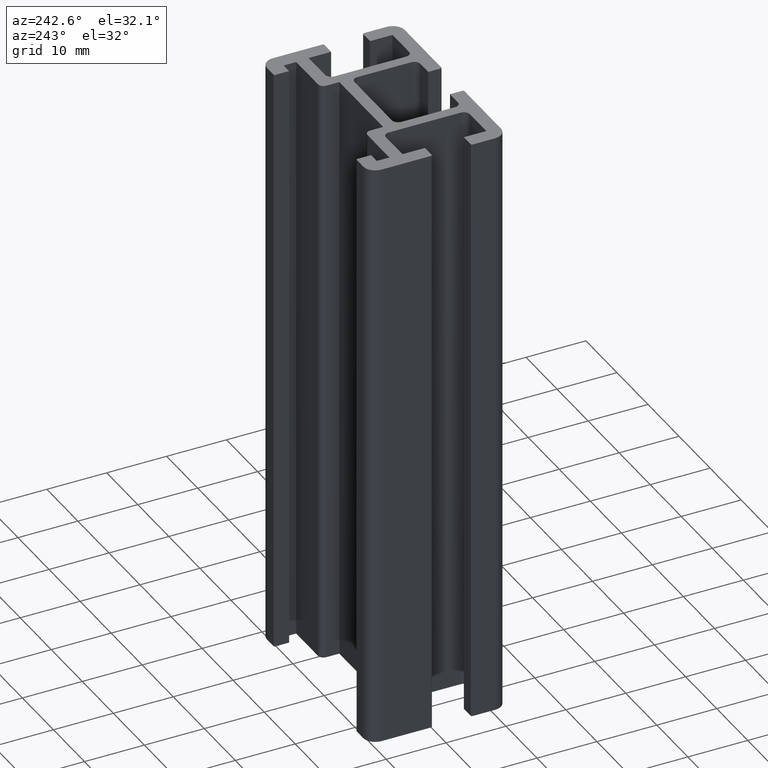
[diagram: clean part render]
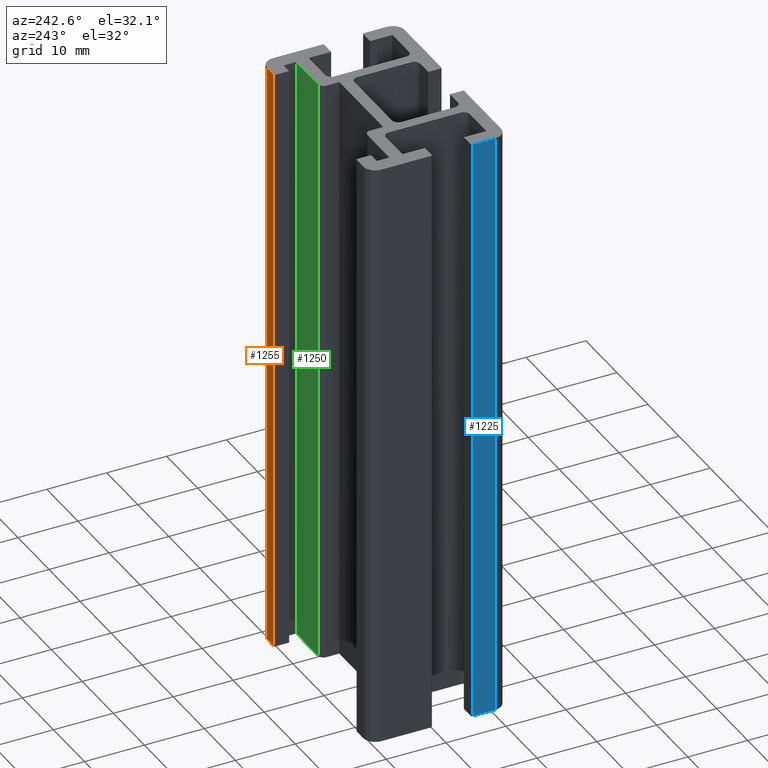
[diagram: same view with three faces highlighted in distinct colors, each labeled with its STEP entity id]
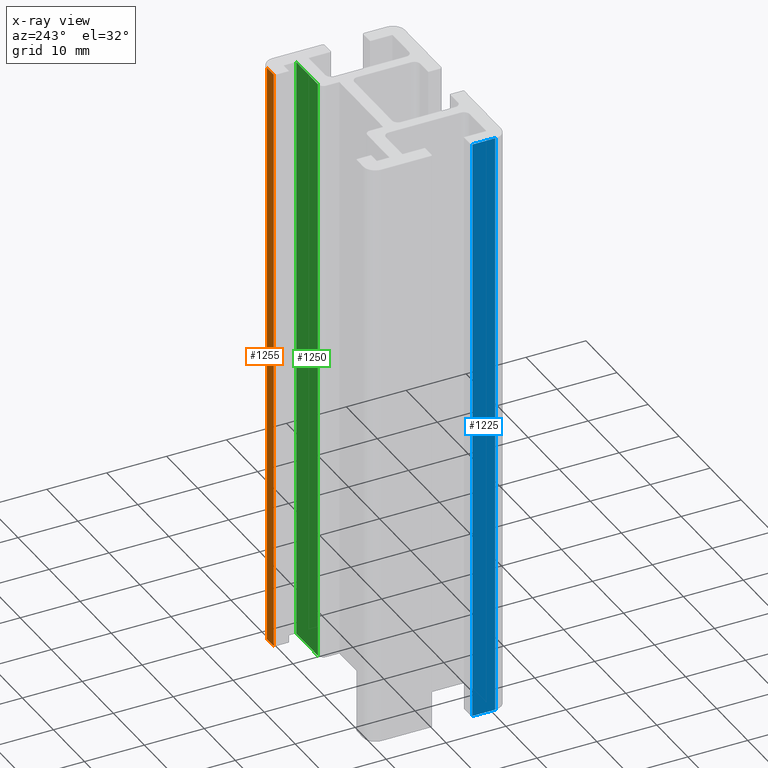
[diagram: x-ray of the same camera — body ghosted, the three highlighted faces saturated]
A machine part, auxiliary view with three faces highlighted in distinct colors.
The next image is the same camera in x-ray (body ghosted, the three faces saturated) — at least one of them is partly hidden behind the body in this view.
Their STEP definitions:

[orange] entity #1255 — the highlighted planar face has unit normal (0, 1, 0).
#40=PLANE('',#1347);
#95=FACE_OUTER_BOUND('',#159,.T.);
#159=EDGE_LOOP('',(#975,#976,#977,#978));
#273=LINE('',#1982,#415);
#274=LINE('',#1985,#416);
#275=LINE('',#1987,#417);
#276=LINE('',#1988,#418);
#415=VECTOR('',#1609,100.);
#416=VECTOR('',#1612,2.10000000000001);
#417=VECTOR('',#1613,2.10000000000001);
#418=VECTOR('',#1614,100.);
#589=VERTEX_POINT('',#1978);
#590=VERTEX_POINT('',#1980);
#591=VERTEX_POINT('',#1984);
#592=VERTEX_POINT('',#1986);
#751=EDGE_CURVE('',#589,#590,#273,.T.);
#752=EDGE_CURVE('',#591,#589,#274,.T.);
#753=EDGE_CURVE('',#592,#590,#275,.T.);
#754=EDGE_CURVE('',#591,#592,#276,.T.);
#975=ORIENTED_EDGE('',*,*,#752,.T.);
#976=ORIENTED_EDGE('',*,*,#751,.T.);
#977=ORIENTED_EDGE('',*,*,#753,.F.);
#978=ORIENTED_EDGE('',*,*,#754,.F.);
#1255=ADVANCED_FACE('',(#95),#40,.T.);
#1347=AXIS2_PLACEMENT_3D('',#1983,#1610,#1611);
#1609=DIRECTION('',(0.,0.,1.));
#1610=DIRECTION('center_axis',(0.,1.,0.));
#1611=DIRECTION('ref_axis',(-1.,0.,0.));
#1612=DIRECTION('',(-1.,0.,0.));
#1613=DIRECTION('',(-1.,0.,0.));
#1614=DIRECTION('',(0.,0.,1.));
#1978=CARTESIAN_POINT('',(13.4,11.5,0.));
#1980=CARTESIAN_POINT('',(13.4,11.5,100.));
#1982=CARTESIAN_POINT('',(13.4,11.5,0.));
#1983=CARTESIAN_POINT('Origin',(15.5,11.5,0.));
#1984=CARTESIAN_POINT('',(15.5,11.5,0.));
#1985=CARTESIAN_POINT('',(15.5,11.5,0.));
#1986=CARTESIAN_POINT('',(15.5,11.5,100.));
#1987=CARTESIAN_POINT('',(15.5,11.5,100.));
#1988=CARTESIAN_POINT('',(15.5,11.5,0.));

[blue] entity #1225 — the highlighted planar face has unit normal (-1, -0, 0).
#19=PLANE('',#1299);
#65=FACE_OUTER_BOUND('',#129,.T.);
#129=EDGE_LOOP('',(#855,#856,#857,#858));
#201=LINE('',#1802,#343);
#202=LINE('',#1805,#344);
#203=LINE('',#1807,#345);
#204=LINE('',#1808,#346);
#343=VECTOR('',#1441,100.);
#344=VECTOR('',#1444,3.79999999999999);
#345=VECTOR('',#1445,3.79999999999999);
#346=VECTOR('',#1446,100.);
#529=VERTEX_POINT('',#1798);
#530=VERTEX_POINT('',#1800);
#531=VERTEX_POINT('',#1804);
#532=VERTEX_POINT('',#1806);
#661=EDGE_CURVE('',#529,#530,#201,.T.);
#662=EDGE_CURVE('',#531,#529,#202,.T.);
#663=EDGE_CURVE('',#532,#530,#203,.T.);
#664=EDGE_CURVE('',#531,#532,#204,.T.);
#855=ORIENTED_EDGE('',*,*,#662,.T.);
#856=ORIENTED_EDGE('',*,*,#661,.T.);
#857=ORIENTED_EDGE('',*,*,#663,.F.);
#858=ORIENTED_EDGE('',*,*,#664,.F.);
#1225=ADVANCED_FACE('',(#65),#19,.T.);
#1299=AXIS2_PLACEMENT_3D('',#1803,#1442,#1443);
#1441=DIRECTION('',(0.,0.,1.));
#1442=DIRECTION('center_axis',(-1.,-4.67462326157962E-15,0.));
#1443=DIRECTION('ref_axis',(4.61852778244065E-15,-1.,0.));
#1444=DIRECTION('',(4.67462326157962E-15,-1.,0.));
#1445=DIRECTION('',(4.67462326157962E-15,-1.,0.));
#1446=DIRECTION('',(0.,0.,1.));
#1798=CARTESIAN_POINT('',(-17.5,-9.49999999999999,0.));
#1800=CARTESIAN_POINT('',(-17.5,-9.49999999999999,100.));
#1802=CARTESIAN_POINT('',(-17.5,-9.49999999999999,0.));
#1803=CARTESIAN_POINT('Origin',(-17.5,-5.7,0.));
#1804=CARTESIAN_POINT('',(-17.5,-5.7,0.));
#1805=CARTESIAN_POINT('',(-17.5,-5.7,0.));
#1806=CARTESIAN_POINT('',(-17.5,-5.7,100.));
#1807=CARTESIAN_POINT('',(-17.5,-5.7,100.));
#1808=CARTESIAN_POINT('',(-17.5,-5.7,0.));

[green] entity #1250 — the highlighted planar face has unit normal (0, 1, 0).
#36=PLANE('',#1340);
#90=FACE_OUTER_BOUND('',#154,.T.);
#154=EDGE_LOOP('',(#955,#956,#957,#958));
#260=LINE('',#1952,#402);
#261=LINE('',#1955,#403);
#262=LINE('',#1957,#404);
#263=LINE('',#1958,#405);
#402=VECTOR('',#1582,100.);
#403=VECTOR('',#1585,6.98533053704571);
#404=VECTOR('',#1586,6.98533053704571);
#405=VECTOR('',#1587,100.);
#579=VERTEX_POINT('',#1948);
#580=VERTEX_POINT('',#1950);
#581=VERTEX_POINT('',#1954);
#582=VERTEX_POINT('',#1956);
#736=EDGE_CURVE('',#579,#580,#260,.T.);
#737=EDGE_CURVE('',#581,#579,#261,.T.);
#738=EDGE_CURVE('',#582,#580,#262,.T.);
#739=EDGE_CURVE('',#581,#582,#263,.T.);
#955=ORIENTED_EDGE('',*,*,#737,.T.);
#956=ORIENTED_EDGE('',*,*,#736,.T.);
#957=ORIENTED_EDGE('',*,*,#738,.F.);
#958=ORIENTED_EDGE('',*,*,#739,.F.);
#1250=ADVANCED_FACE('',(#90),#36,.T.);
#1340=AXIS2_PLACEMENT_3D('',#1953,#1583,#1584);
#1582=DIRECTION('',(0.,0.,1.));
#1583=DIRECTION('center_axis',(0.,1.,0.));
#1584=DIRECTION('ref_axis',(-1.,0.,0.));
#1585=DIRECTION('',(-1.,0.,0.));
#1586=DIRECTION('',(-1.,0.,0.));
#1587=DIRECTION('',(0.,0.,1.));
#1948=CARTESIAN_POINT('',(7.97845246994464,6.90000000000001,0.));
#1950=CARTESIAN_POINT('',(7.97845246994464,6.90000000000001,100.));
#1952=CARTESIAN_POINT('',(7.97845246994464,6.90000000000001,0.));
#1953=CARTESIAN_POINT('Origin',(14.9637830069904,6.90000000000001,0.));
#1954=CARTESIAN_POINT('',(14.9637830069904,6.90000000000001,0.));
#1955=CARTESIAN_POINT('',(14.9637830069904,6.90000000000001,0.));
#1956=CARTESIAN_POINT('',(14.9637830069904,6.90000000000001,100.));
#1957=CARTESIAN_POINT('',(14.9637830069904,6.90000000000001,100.));
#1958=CARTESIAN_POINT('',(14.9637830069904,6.90000000000001,0.));